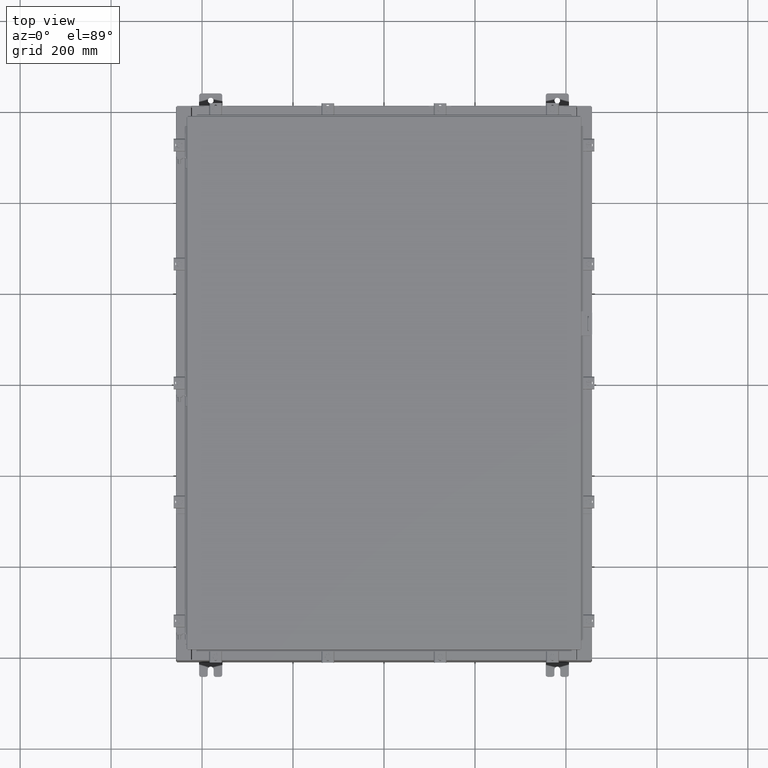
[diagram: clean part render]
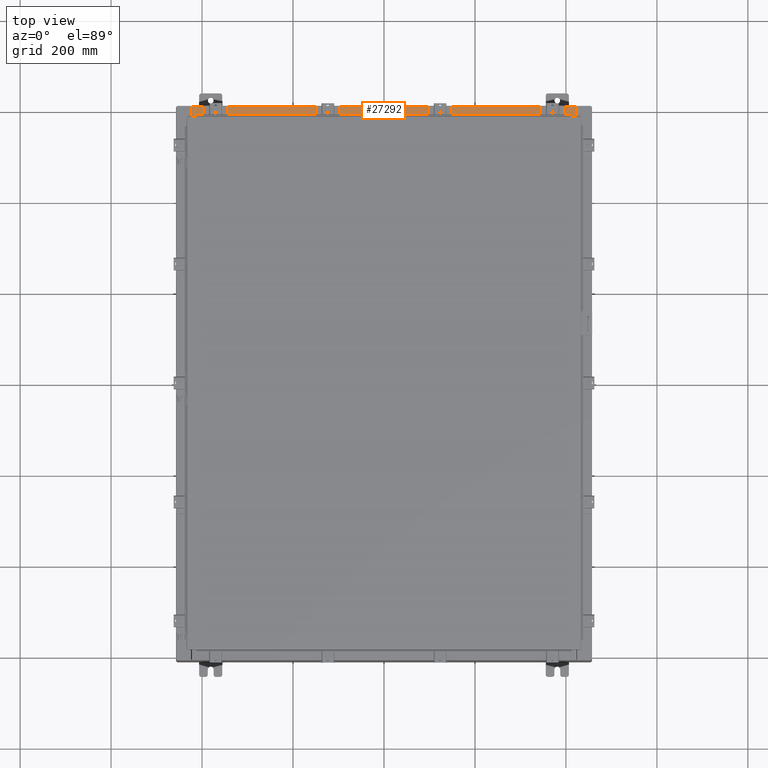
[diagram: same view with one face highlighted and labeled with its STEP entity id]
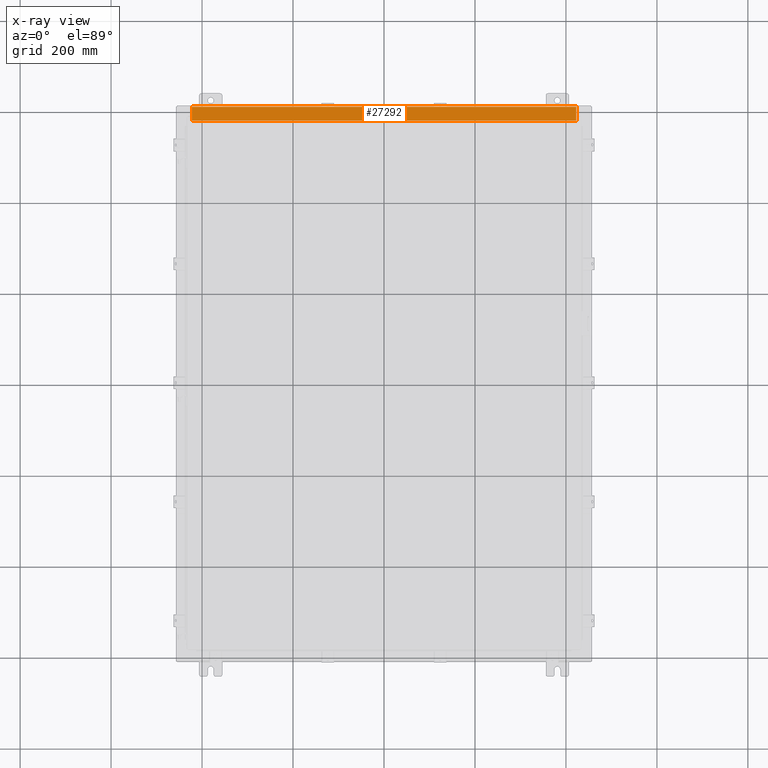
[diagram: x-ray of the same camera — body ghosted, the highlighted face saturated]
A machine part, top view. The second image highlights one B-rep face of the part: STEP entity #27292.
The next image is the same camera in x-ray: the body ghosted, the highlighted face saturated — about 0% of this face is hidden behind the body in this view.
In plain terms, the highlighted planar face has unit normal (0, 0, 1).
Its self-contained STEP definition (entity closure, byte-faithful):
#2182 = DIRECTION ( 'NONE',  ( -0.0000000000000000000, -1.000000000000000000, 3.566381192773190000E-015 ) ) ;
#2252 = CARTESIAN_POINT ( 'NONE',  ( 16.63720000000000400, -1.287299999999999900, 5.000000000000002700 ) ) ;
#2478 = VERTEX_POINT ( 'NONE', #7754 ) ;
#2789 = EDGE_CURVE ( 'NONE', #14416, #2478, #16486, .T. ) ;
#3571 = VECTOR ( 'NONE', #14248, 39.37007874015748100 ) ;
#3702 = VECTOR ( 'NONE', #15929, 39.37007874015748100 ) ;
#5176 = VECTOR ( 'NONE', #8672, 39.37007874015748100 ) ;
#5667 = DIRECTION ( 'NONE',  ( 0.0000000000000000000, -1.000000000000000000, 3.566381192773190000E-015 ) ) ;
#7754 = CARTESIAN_POINT ( 'NONE',  ( -16.63720000000000000, -1.287299999999999200, 5.000000000000004400 ) ) ;
#8343 = FACE_OUTER_BOUND ( 'NONE', #19063, .T. ) ;
#8672 = DIRECTION ( 'NONE',  ( -1.000000000000000000, 0.0000000000000000000, 0.0000000000000000000 ) ) ;
#9391 = LINE ( 'NONE', #17987, #3702 ) ;
#9782 = CARTESIAN_POINT ( 'NONE',  ( -16.63720000000000000, -0.08770000000000081900, 5.000000000000000000 ) ) ;
#10433 = LINE ( 'NONE', #17066, #21739 ) ;
#11436 = ORIENTED_EDGE ( 'NONE', *, *, #21318, .T. ) ;
#11990 = PLANE ( 'NONE',  #24733 ) ;
#14248 = DIRECTION ( 'NONE',  ( -1.000000000000000000, -3.284023746380717400E-017, 1.171208052571274300E-031 ) ) ;
#14416 = VERTEX_POINT ( 'NONE', #27090 ) ;
#15561 = LINE ( 'NONE', #24875, #3571 ) ;
#15929 = DIRECTION ( 'NONE',  ( -0.0000000000000000000, 1.000000000000000000, -3.566381192773190000E-015 ) ) ;
#16196 = VERTEX_POINT ( 'NONE', #21546 ) ;
#16259 = CARTESIAN_POINT ( 'NONE',  ( 0.0000000000000000000, 1.782631094477737600E-014, 5.000000000000000000 ) ) ;
#16486 = LINE ( 'NONE', #2252, #5176 ) ;
#16580 = VERTEX_POINT ( 'NONE', #9782 ) ;
#17066 = CARTESIAN_POINT ( 'NONE',  ( 16.63720000000000000, -1.300299999999999800, 5.000000000000004400 ) ) ;
#17987 = CARTESIAN_POINT ( 'NONE',  ( -16.63720000000000000, -0.07469999999999973900, 5.000000000000000000 ) ) ;
#18423 = DIRECTION ( 'NONE',  ( 0.0000000000000000000, 3.566381192773190000E-015, 1.000000000000000000 ) ) ;
#19063 = EDGE_LOOP ( 'NONE', ( #22151, #27563, #26771, #11436 ) ) ;
#21318 = EDGE_CURVE ( 'NONE', #16196, #16580, #15561, .T. ) ;
#21546 = CARTESIAN_POINT ( 'NONE',  ( 16.63720000000000400, -0.08770000000000047200, 5.000000000000000000 ) ) ;
#21739 = VECTOR ( 'NONE', #2182, 39.37007874015748100 ) ;
#22151 = ORIENTED_EDGE ( 'NONE', *, *, #26479, .F. ) ;
#24733 = AXIS2_PLACEMENT_3D ( 'NONE', #16259, #18423, #5667 ) ;
#24875 = CARTESIAN_POINT ( 'NONE',  ( 2.880088825576501100E-018, -0.08770000000000081900, 5.000000000000000000 ) ) ;
#26144 = EDGE_CURVE ( 'NONE', #16196, #14416, #10433, .T. ) ;
#26479 = EDGE_CURVE ( 'NONE', #2478, #16580, #9391, .T. ) ;
#26771 = ORIENTED_EDGE ( 'NONE', *, *, #26144, .F. ) ;
#27090 = CARTESIAN_POINT ( 'NONE',  ( 16.63720000000000000, -1.287299999999999900, 5.000000000000004400 ) ) ;
#27292 = ADVANCED_FACE ( 'NONE', ( #8343 ), #11990, .T. ) ;
#27563 = ORIENTED_EDGE ( 'NONE', *, *, #2789, .F. ) ;